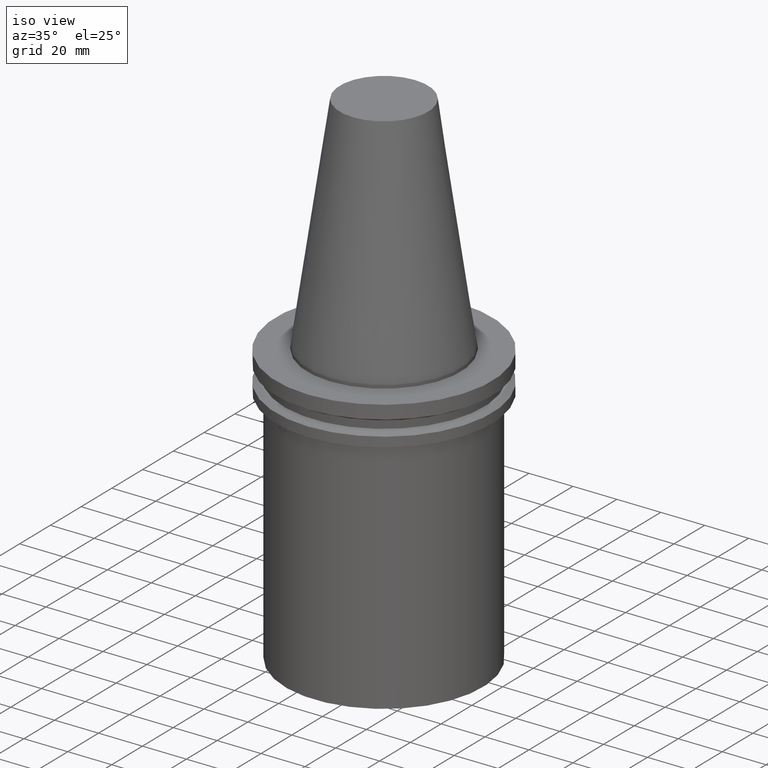
[diagram: clean part render]
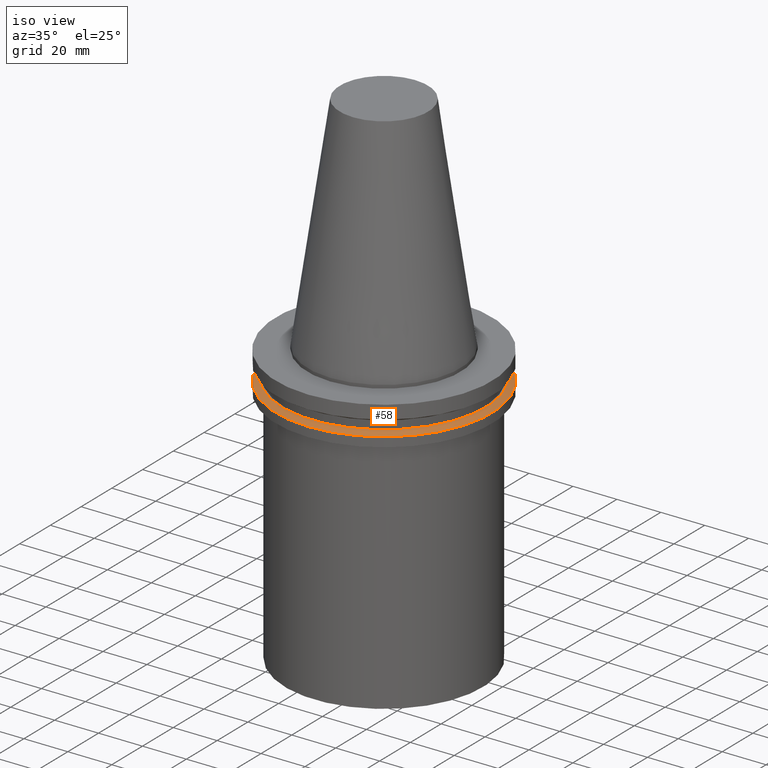
[diagram: same view with one face highlighted and labeled with its STEP entity id]
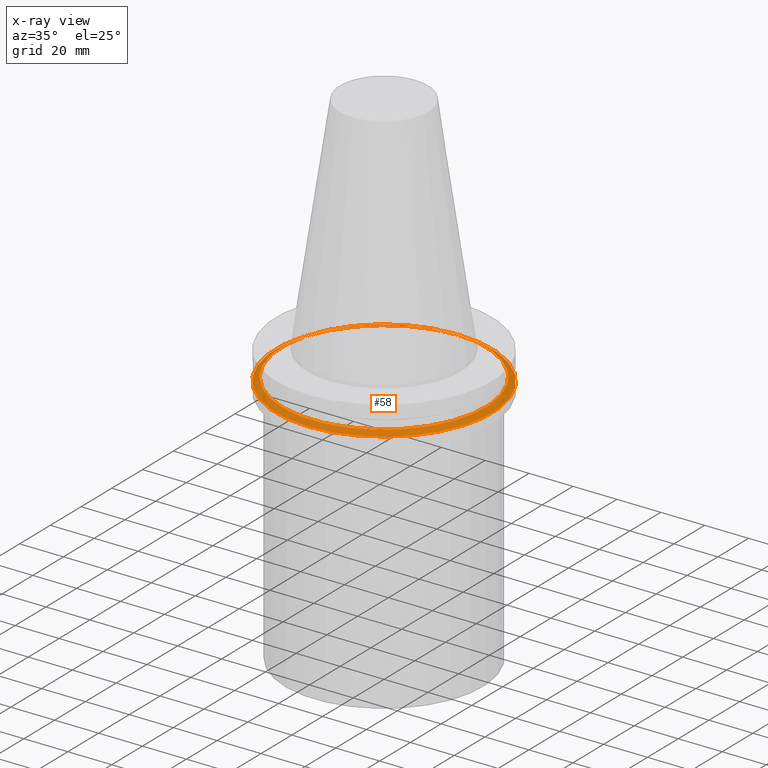
[diagram: x-ray of the same camera — body ghosted, the highlighted face saturated]
A machine part, iso view. The second image highlights one B-rep face of the part: STEP entity #58.
The next image is the same camera in x-ray: the body ghosted, the highlighted face saturated — about 8% of this face is hidden behind the body in this view.
In plain terms, the highlighted conical surface has half-angle 60 deg.
Its self-contained STEP definition (entity closure, byte-faithful):
#58=ADVANCED_FACE('Unnamed[1]',(#152,#153),#154,.T.);
#96=EDGE_CURVE('Unnamed[1]',#210,#210,#211,.T.);
#107=EDGE_CURVE('Unnamed[1]',#227,#227,#228,.T.);
#152=FACE_BOUND('',#278,.T.);
#153=FACE_BOUND('',#279,.T.);
#154=CONICAL_SURFACE('',#280,47.821518775,1.04719755103023);
#210=VERTEX_POINT('',#350);
#211=CIRCLE('',#351,49.2125);
#227=VERTEX_POINT('',#372);
#228=CIRCLE('',#373,46.43053755);
#278=EDGE_LOOP('',(#424));
#279=EDGE_LOOP('',(#425));
#280=AXIS2_PLACEMENT_3D('',#426,#427,#428);
#350=CARTESIAN_POINT('',(8.96819062732941E-016,49.2125,-14.64616677));
#351=AXIS2_PLACEMENT_3D('',#488,#489,#490);
#372=CARTESIAN_POINT('',(7.98469713044073E-016,46.43053755,-13.04));
#373=AXIS2_PLACEMENT_3D('',#506,#507,#508);
#424=ORIENTED_EDGE('',*,*,#96,.F.);
#425=ORIENTED_EDGE('',*,*,#107,.T.);
#426=CARTESIAN_POINT('',(8.47644387888508E-016,1.69528877577702E-015,-13.843083385));
#427=DIRECTION('',(6.12323399573677E-017,1.22464679914735E-016,-1.0));
#428=DIRECTION('',(-1.23259516440783E-032,1.0,1.22464679914735E-016));
#488=CARTESIAN_POINT('',(8.96819062732942E-016,1.79363812546588E-015,-14.64616677));
#489=DIRECTION('',(6.12323399573677E-017,1.22464679914735E-016,-1.0));
#490=DIRECTION('',(-1.23259516440783E-032,1.0,1.22464679914735E-016));
#506=CARTESIAN_POINT('',(7.98469713044074E-016,1.59693942608815E-015,-13.04));
#507=DIRECTION('',(6.12323399573677E-017,1.22464679914735E-016,-1.0));
#508=DIRECTION('',(-1.23259516440783E-032,1.0,1.22464679914735E-016));